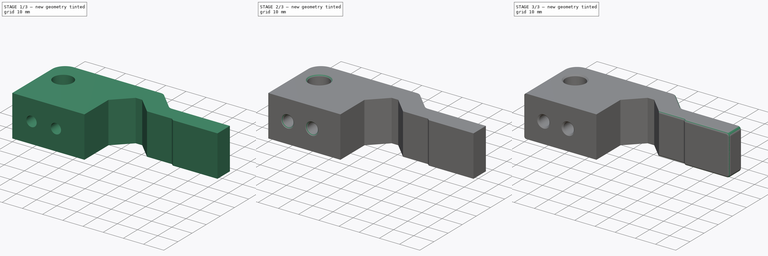
[diagram: build sequence overview — one tinted view per stage of 3, left to right]
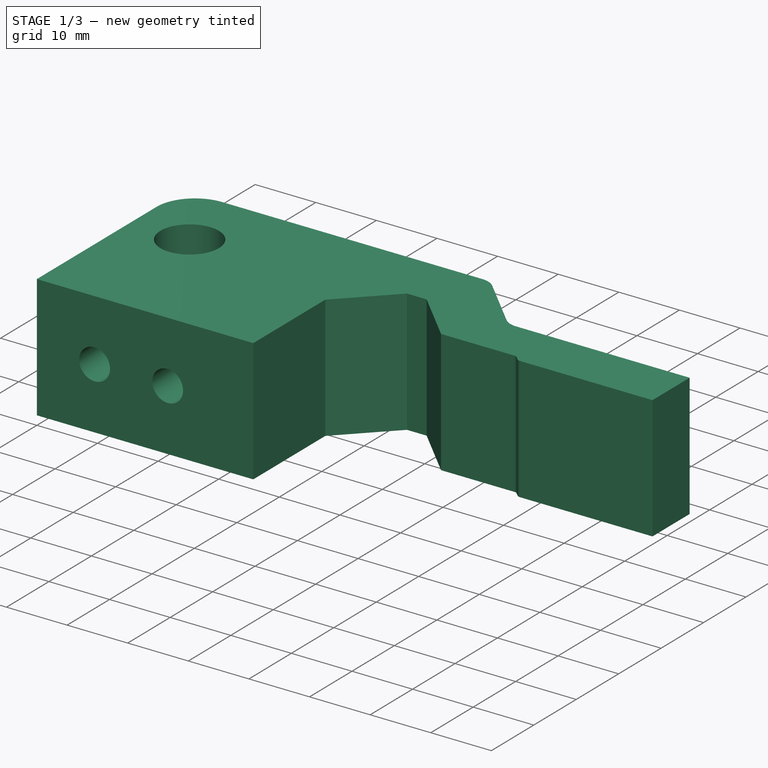
[diagram: stage 1 of 3 — iso view after this stage's code; geometry added in this stage tinted green]
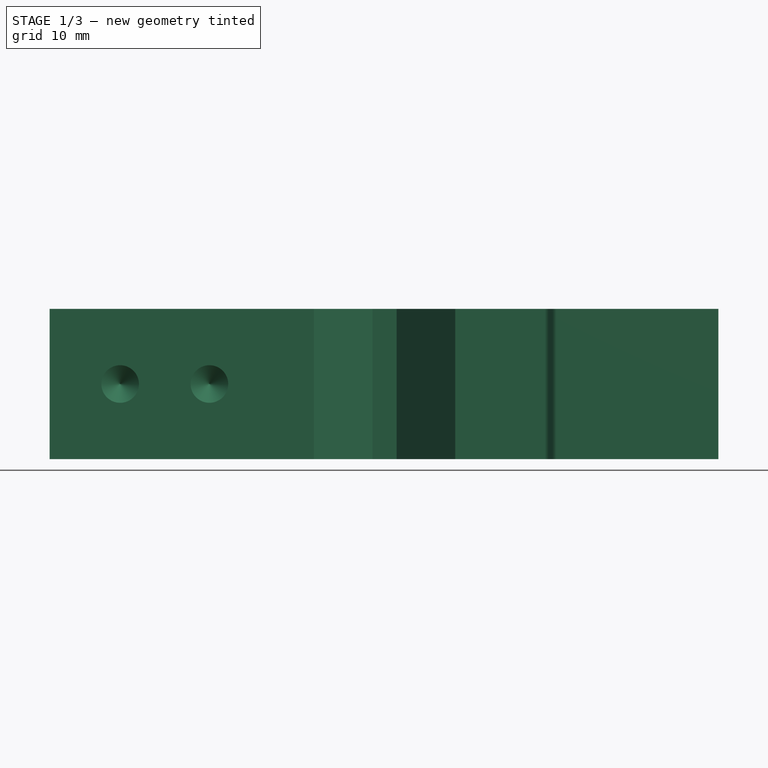
[diagram: stage 1 of 3 — front view after this stage's code; geometry added in this stage tinted green]
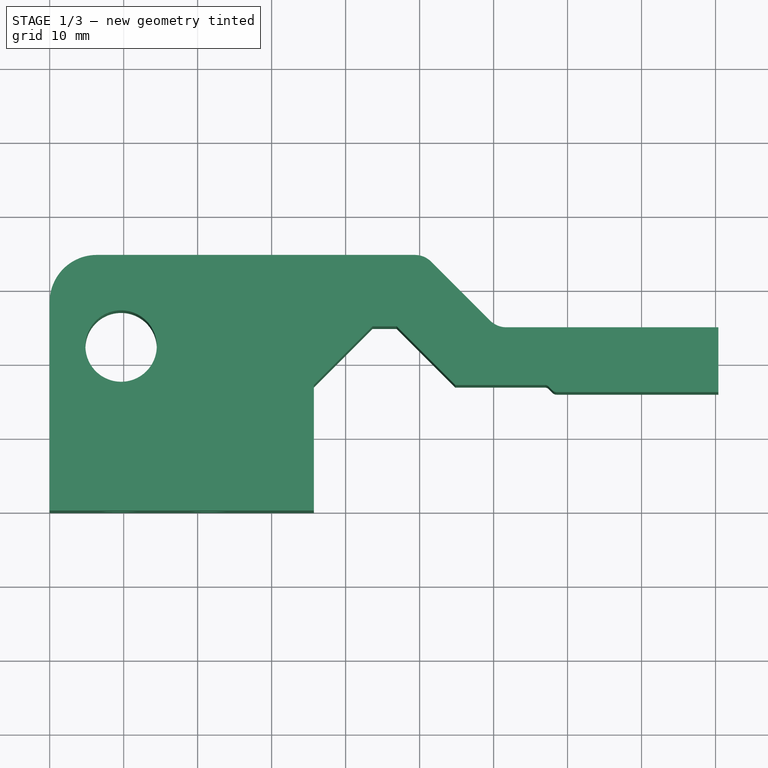
[diagram: stage 1 of 3 — top view after this stage's code; geometry added in this stage tinted green]
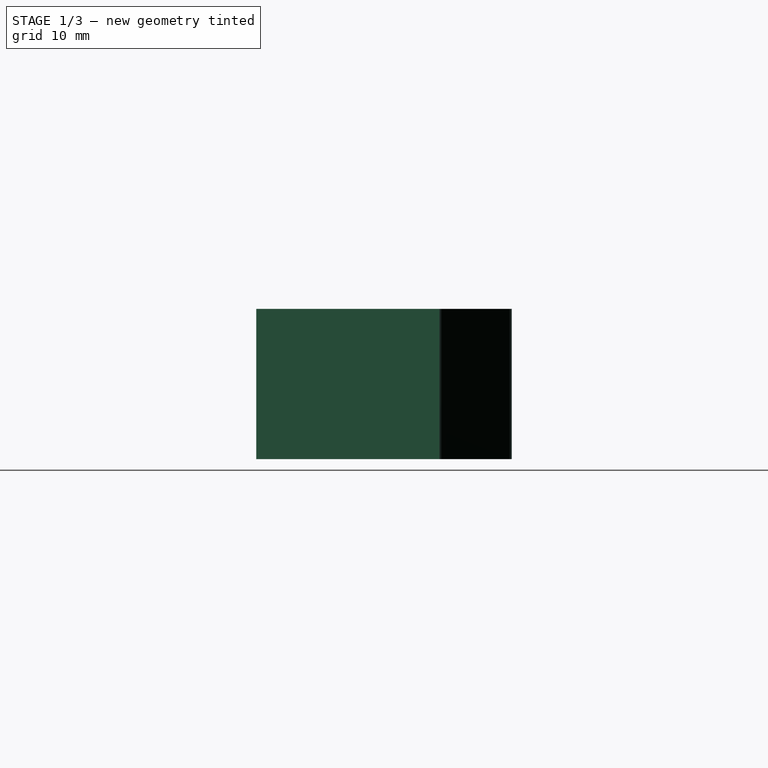
[diagram: stage 1 of 3 — right view after this stage's code; geometry added in this stage tinted green]
FCSTD DOCUMENT  (FreeCAD 0.18R16146 (Git))
Label: Carriage Stop
License: All rights reserved
LicenseURL: http://en.wikipedia.org/wiki/All_rights_reserved
objects: Sketcher::SketchObject×2, PartDesign::Fillet×2, PartDesign::Pad×1, PartDesign::Hole×1, PartDesign::Chamfer×1, PartDesign::Body×1
note: 10 computed .brp shape members not serialized (recipe doc carries the construction recipe); baked Part::Feature solids carry a one-line shape summary decoded from their .brp

FEATURE [Sketcher::SketchObject] Sketch
  MapMode = 5
  Support = -> [XY_Plane]
  sketch-geometry (21):
    g0: LineSegment StartX=35.7124 StartY=1.7008e-12 StartZ=0 EndX=0 EndY=0 EndZ=0
    g1: LineSegment StartX=46.8884 StartY=24.892 StartZ=0 EndX=54.8132 EndY=16.9672 EndZ=0
    g2: LineSegment StartX=90.3732 StartY=24.7593 StartZ=0 EndX=90.3732 EndY=16.9672 EndZ=0
    g3: LineSegment StartX=0 StartY=0 StartZ=0 EndX=0 EndY=28.194 EndZ=0
    g4: LineSegment StartX=35.7124 StartY=1.7008e-12 StartZ=0 EndX=35.7124 EndY=16.9672 EndZ=0
    g5: LineSegment StartX=35.7124 StartY=16.9672 StartZ=0 EndX=43.6372 EndY=24.892 EndZ=0
    g6: LineSegment StartX=43.6372 StartY=24.892 StartZ=0 EndX=46.8884 EndY=24.892 EndZ=0
    g7: LineSegment StartX=6.35 StartY=34.544 StartZ=0 EndX=49.3396 EndY=34.544 EndZ=0
    g8: LineSegment StartX=51.5846 StartY=33.6141 StartZ=0 EndX=59.5094 EndY=25.6893 EndZ=0
    g9: LineSegment StartX=61.7545 StartY=24.7593 StartZ=0 EndX=90.3732 EndY=24.7593 EndZ=0
    g10: Circle CenterX=9.652 CenterY=22.225 CenterZ=0 NormalX=0 NormalY=0 NormalZ=1 AngleXU=0 Radius=4.826
    g11: LineSegment StartX=54.8132 StartY=16.9672 StartZ=0 EndX=66.9073 EndY=16.9672 EndZ=0
    g12: LineSegment StartX=67.4462 StartY=16.744 StartZ=0 EndX=67.965 EndY=16.2252 EndZ=0
    g13: LineSegment StartX=68.5038 StartY=16.002 StartZ=0 EndX=90.3732 EndY=16.002 EndZ=0
    g14: LineSegment StartX=90.3732 StartY=16.002 StartZ=0 EndX=90.3732 EndY=16.9672 EndZ=0
    g15: ArcOfCircle CenterX=49.3396 CenterY=31.369 CenterZ=0 NormalX=0 NormalY=0 NormalZ=1 AngleXU=0 Radius=3.175 StartAngle=0.785398 EndAngle=1.5708
    g16: ArcOfCircle CenterX=61.7545 CenterY=27.9343 CenterZ=0 NormalX=0 NormalY=0 NormalZ=1 AngleXU=0 Radius=3.175 StartAngle=3.92699 EndAngle=4.71239
    g17: ArcOfCircle CenterX=68.5038 CenterY=16.764 CenterZ=0 NormalX=0 NormalY=0 NormalZ=1 AngleXU=0 Radius=0.762 StartAngle=3.92699 EndAngle=4.71239
    g18: ArcOfCircle CenterX=66.9073 CenterY=16.2052 CenterZ=0 NormalX=0 NormalY=0 NormalZ=1 AngleXU=0 Radius=0.762 StartAngle=0.785398 EndAngle=1.5708
    g19: ArcOfCircle CenterX=6.35 CenterY=28.194 CenterZ=0 NormalX=0 NormalY=0 NormalZ=1 AngleXU=0 Radius=6.35 StartAngle=1.5708 EndAngle=3.14159
    g20: GeomPoint X=0 Y=0 Z=0
  constraints (55):
    c: Coincident(g0,g3)
    c: Perpendicular(g3,g0)
    c: Coincident(g4,g0)
    c: Coincident(g6,g1)
    c: Perpendicular(g1,g5)
    c: Coincident(g6,g5)
    c: Coincident(g5,g4)
    c: Equal(g5,g1)
    c: Parallel(g3,g4)
    c: DistanceY(g1,g1) = 7.9248
    c: DistanceY(g0,g2) = 16.9672
    c: Distance(g0) = 35.7124
    c: Coincident(g9,g2)
    c: Perpendicular(g7,g3)
    c: Perpendicular(g2,g9)
    c: Parallel(g1,g8)
    c: DistanceY(g1,g2) = 0
    c: Parallel(g7,g6)
    c: Equal(g1,g8)
    c: Diameter(g10) = 9.652
    c: DistanceY(g0,g10) = 22.225
    c: DistanceX(g0,g10) = 9.652
    c: Distance(g6) = 3.2512
    c: Coincident(g11,g1)
    c: Coincident(g13,g14)
    c: Horizontal(g11)
    c: Horizontal(g13)
    c: Vertical(g14)
    c: Coincident(g14,g2)
    c: Distance(g14) = 0.9652
    c: Angle(g12) = -0.785398
    c: Horizontal(g9)
    c: DistanceY(g4,g1) = 0
    c: Vertical(g4)
    c: DistanceX(g1,g13) = 35.56
    c: Tangent(g7,g15) = 1.5708
    c: Tangent(g8,g15) = 1.5708
    c: Radius(g15) = 3.175
    c: Tangent(g9,g16) = -1.5708
    c: Tangent(g8,g16) = -1.5708
    c: Radius(g16) = 3.175
    c: Distance(g1,g8) = 9.906
    c: Tangent(g12,g17) = -1.5708
    c: Tangent(g13,g17) = -1.5708
    c: Tangent(g11,g18) = 1.5708
    c: Tangent(g12,g18) = 1.5708
    c: Radius(g18) = 0.762
    c: Radius(g17) = 0.762
    c: Distance(g13) = 21.8694
    c: Tangent(g7,g19) = 1.5708
    c: Tangent(g3,g19) = 1.5708
    c: Radius(g19) = 6.35
    c: Distance(g5,g7) = 9.652
    c: Coincident(g0,g20)
    c: Coincident(g-1,g0)
FEATURE [PartDesign::Pad] Pad
  Length = 20.32
  Length2 = 100.076
  Profile = -> Sketch
  Type = 0
FEATURE [Sketcher::SketchObject] Sketch001
  MapMode = 5
  Placement = pos=(0,0,0) rot=(1,0,0;1.5708rad)
  Support = -> [Pad]
  sketch-geometry (2):
    g0: Circle CenterX=9.525 CenterY=10.16 CenterZ=0 NormalX=0 NormalY=0 NormalZ=1 AngleXU=0 Radius=1.5875
    g1: Circle CenterX=21.59 CenterY=10.16 CenterZ=0 NormalX=0 NormalY=0 NormalZ=1 AngleXU=0 Radius=2.5527
  constraints (6):
    c: Diameter(g0) = 3.175
    c: DistanceY(g-1,g0) = 10.16
    c: DistanceX(g-1,g0) = 9.525
    c: Diameter(g1) = 5.1054
    c: DistanceY(g-1,g1) = 10.16
    c: DistanceX(g-1,g1) = 21.59
FEATURE [PartDesign::Hole] Hole
  BaseFeature = -> Pad
  Depth = 15.24
  DepthType = 0
  Diameter = 5.08
  DrillPoint = 1
  DrillPointAngle = 118
  HoleCutCountersinkAngle = 82
  HoleCutDepth = 0
  HoleCutDiameter = 5.207
  HoleCutType = 0
  ModelActualThread = false
  Profile = -> Sketch001
  Tapered = false
  TaperedAngle = 90
  ThreadAngle = 60
  ThreadClass = 0
  ThreadCutOffInner = 0.137482
  ThreadCutOffOuter = 0.274963
  ThreadDirection = 1
  ThreadFit = 0
  ThreadPitch = 1.27
  ThreadSize = 9
  ThreadType = 3
  Threaded = true
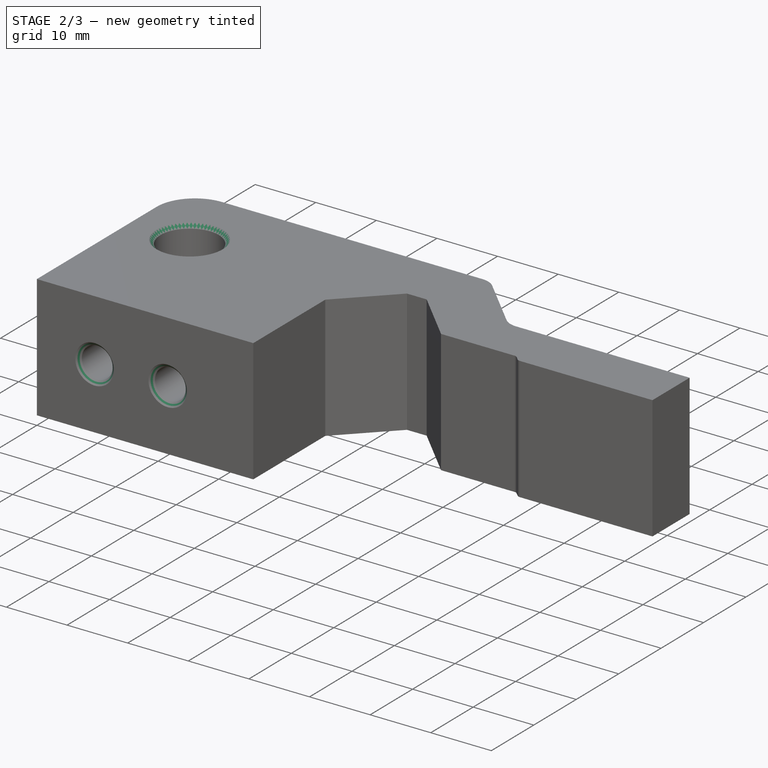
[diagram: stage 2 of 3 — iso view after this stage's code; geometry added in this stage tinted green]
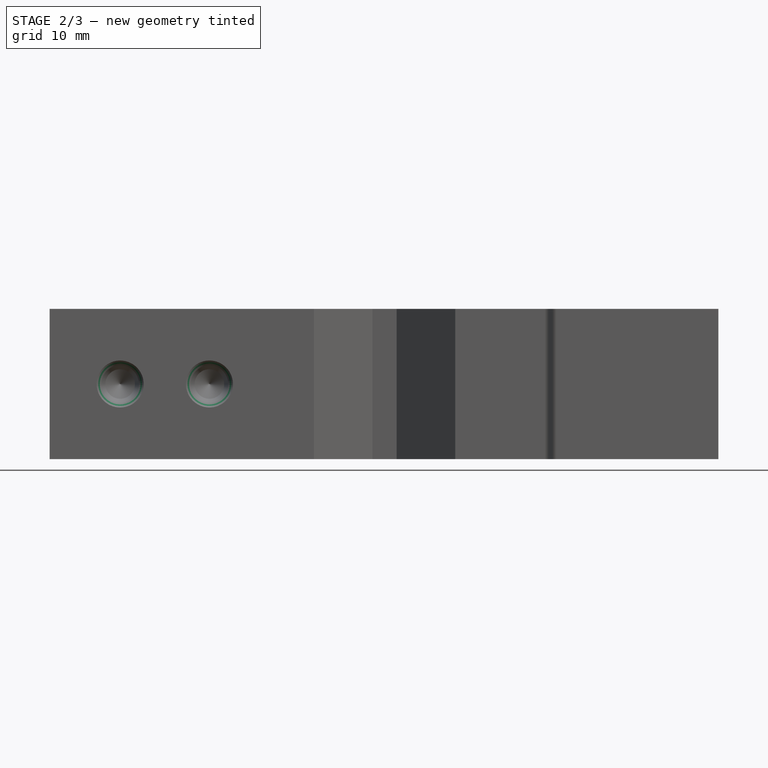
[diagram: stage 2 of 3 — front view after this stage's code; geometry added in this stage tinted green]
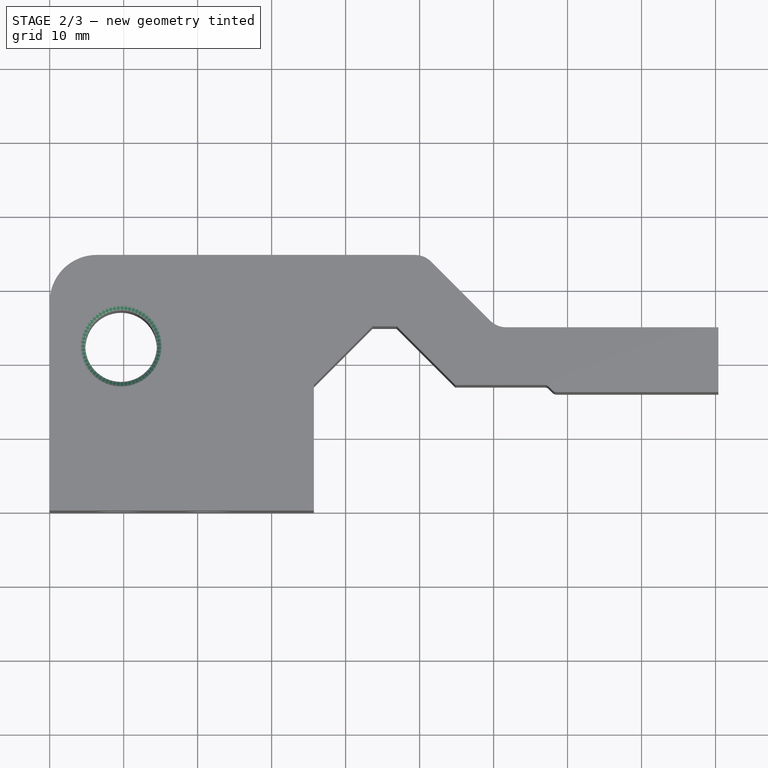
[diagram: stage 2 of 3 — top view after this stage's code; geometry added in this stage tinted green]
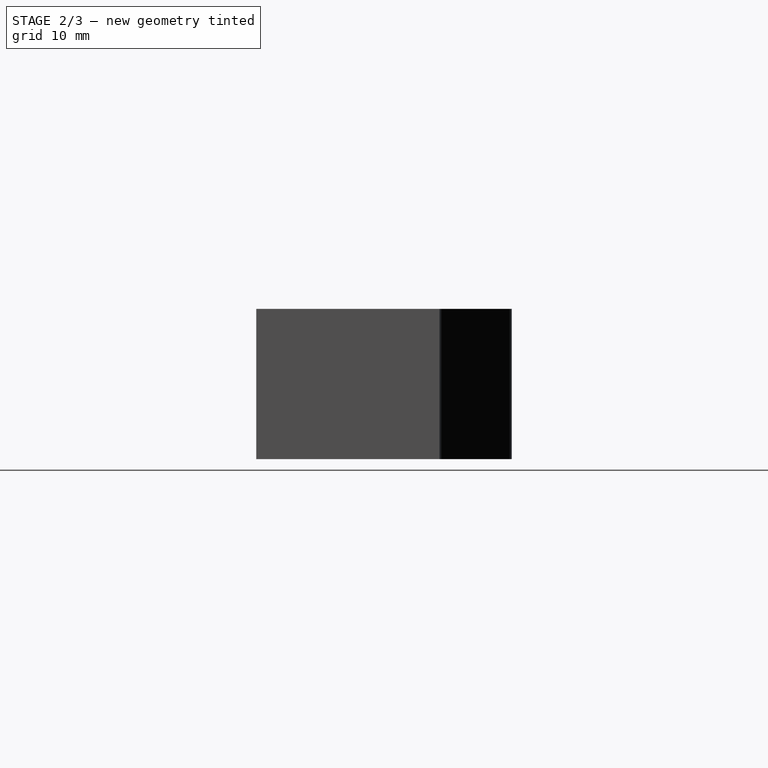
[diagram: stage 2 of 3 — right view after this stage's code; geometry added in this stage tinted green]
FEATURE [PartDesign::Chamfer] Chamfer
  Base = -> Hole [Face24,Face7,Face8]
  BaseFeature = -> Hole
  Size = 0.635
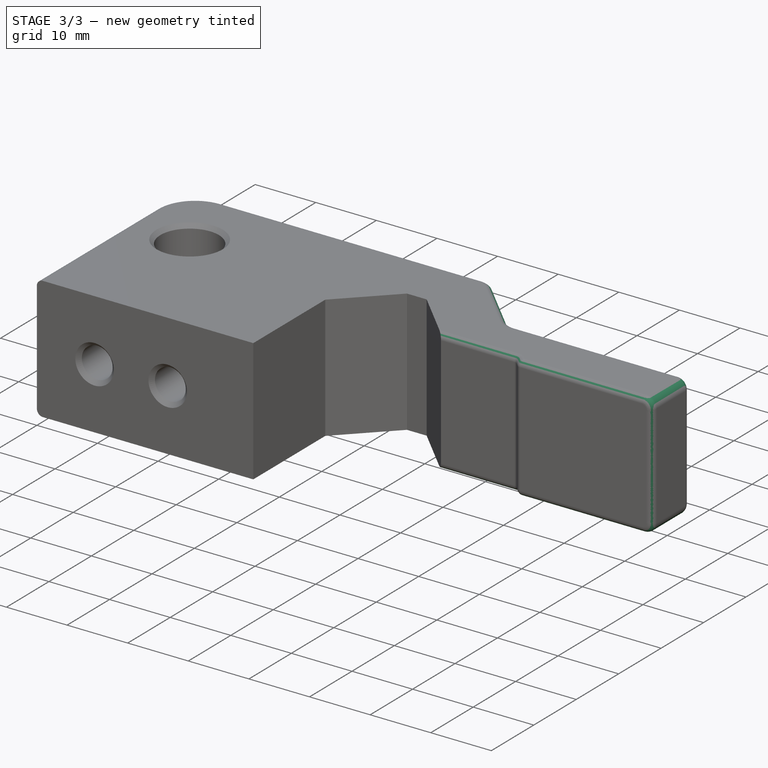
[diagram: stage 3 of 3 — iso view after this stage's code; geometry added in this stage tinted green]
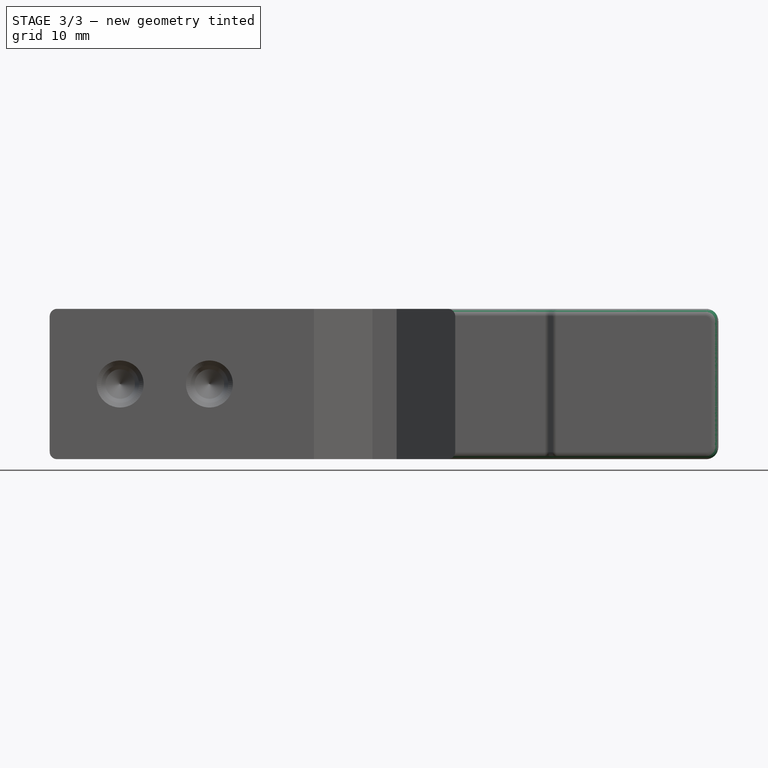
[diagram: stage 3 of 3 — front view after this stage's code; geometry added in this stage tinted green]
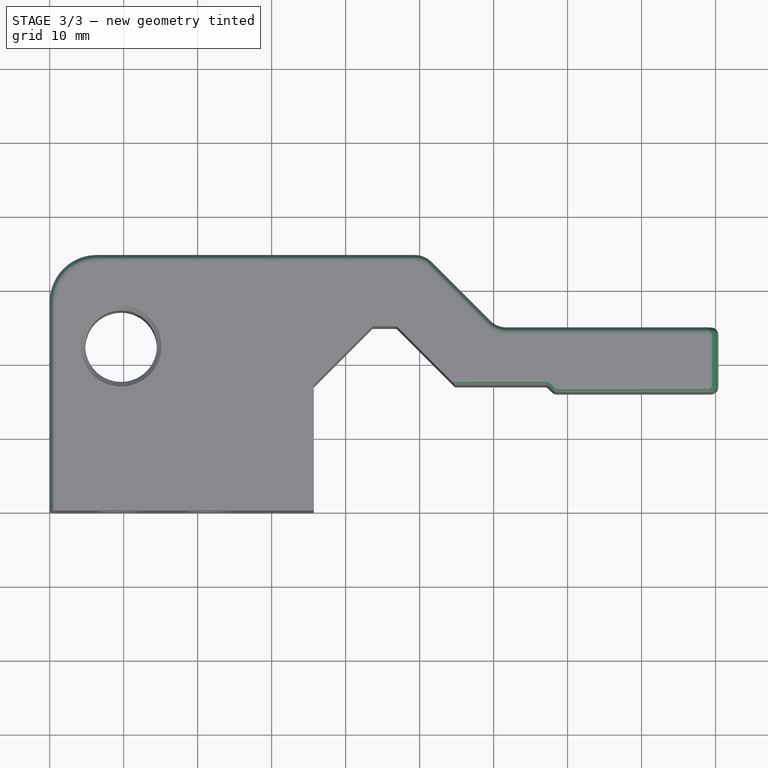
[diagram: stage 3 of 3 — top view after this stage's code; geometry added in this stage tinted green]
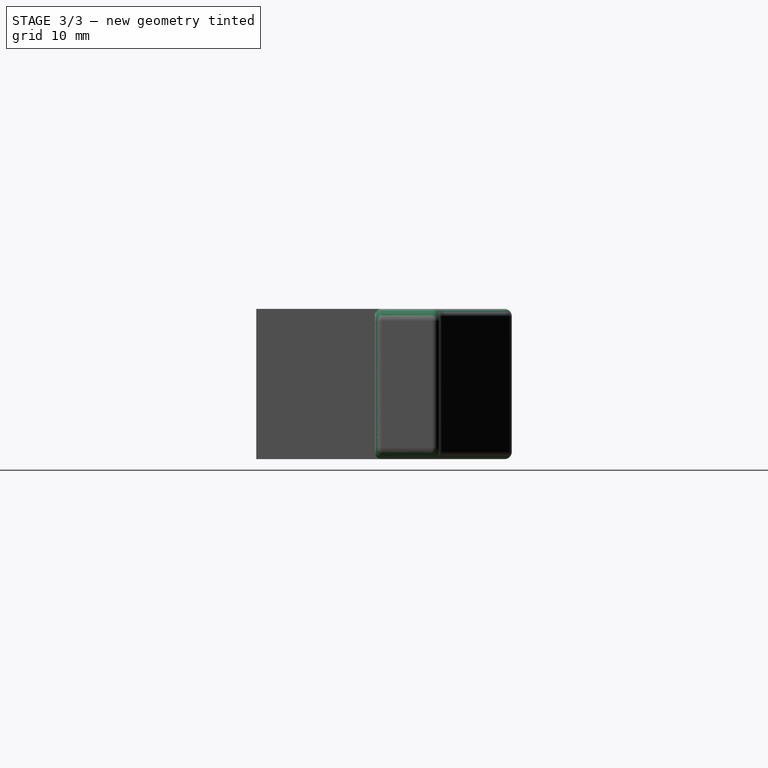
[diagram: stage 3 of 3 — right view after this stage's code; geometry added in this stage tinted green]
FEATURE [PartDesign::Fillet] Fillet
  Base = -> Chamfer [Edge20,Edge38]
  BaseFeature = -> Chamfer
  Radius = 1.651
FEATURE [PartDesign::Fillet] Fillet001
  Base = -> Fillet [Edge29,Edge33,Edge39,Edge43,Edge24,Edge23,Edge21,Edge22,Edge1,Edge3,Edge5,Edge7,Edge9,Edge11,Edge13,Edge51,Edge47,Edge53,Edge14,Edge49,Edge45,Edge41,Edge8,Edge10,Edge12]
  BaseFeature = -> Fillet
  Radius = 0.999998
FEATURE [PartDesign::Body] Body
  Group = -> [Sketch,Pad,Sketch001,Hole,Chamfer,Fillet,Fillet001]
  Origin = -> Origin
  Tip = -> Fillet001
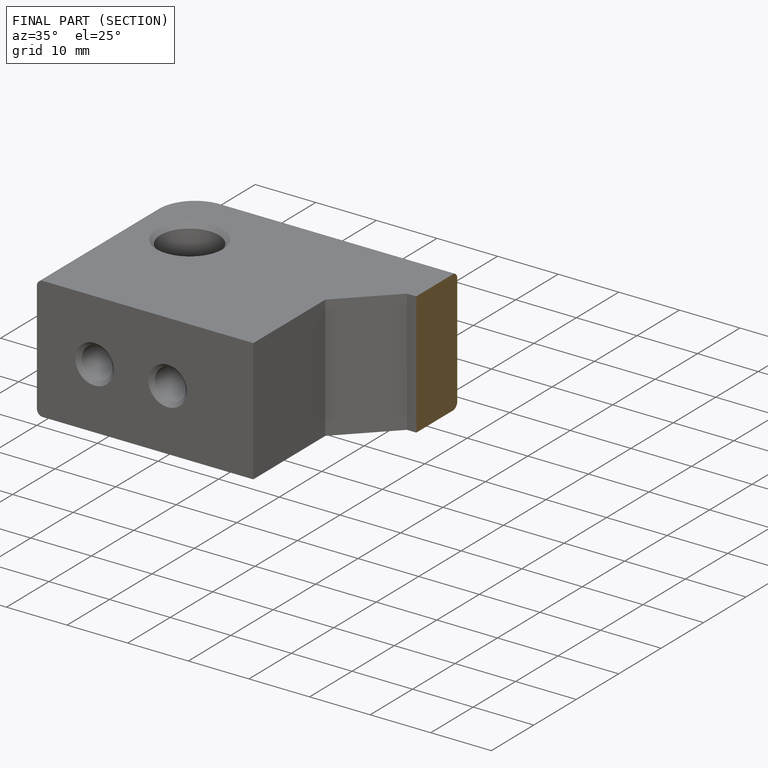
[diagram: finished part — half-section view (interior)]
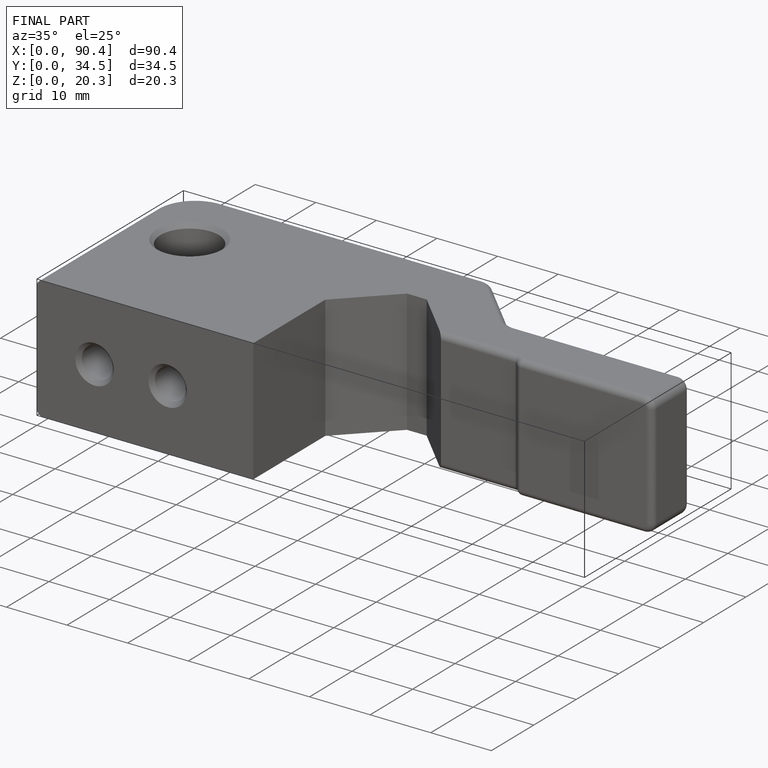
[diagram: finished part — iso view with bounding-box wireframe]
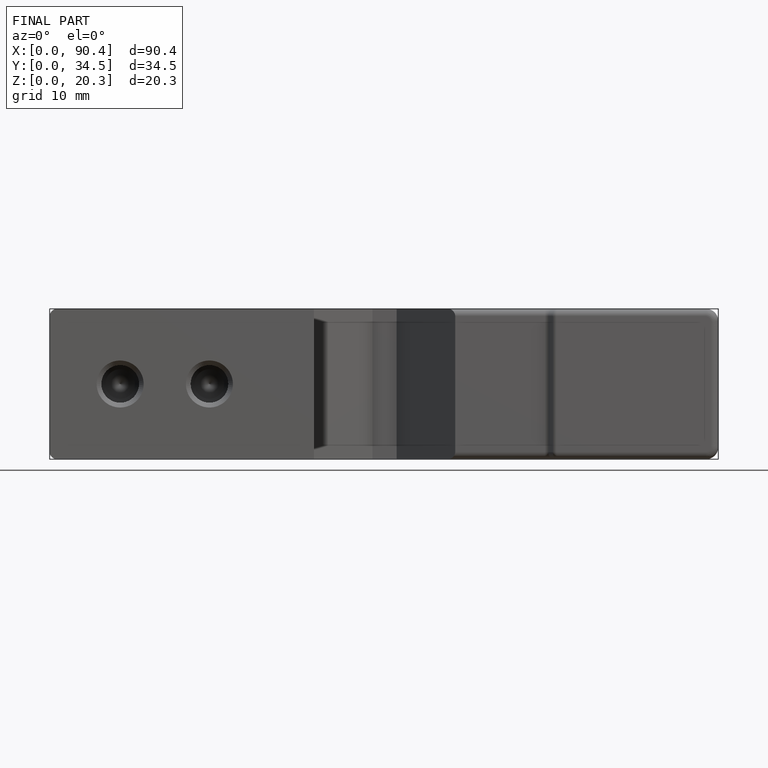
[diagram: finished part — front view with bounding-box wireframe]
